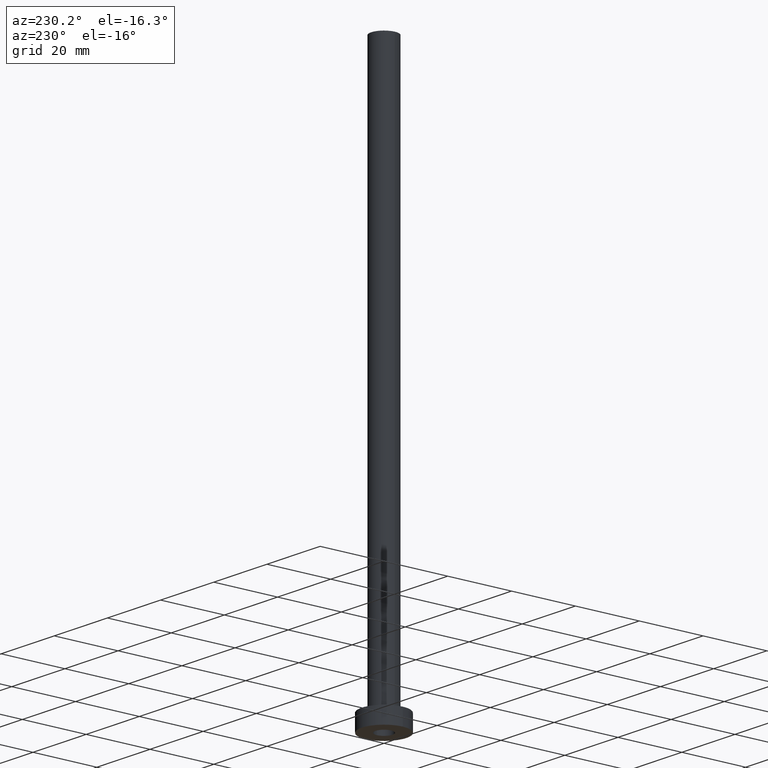
[diagram: clean part render]
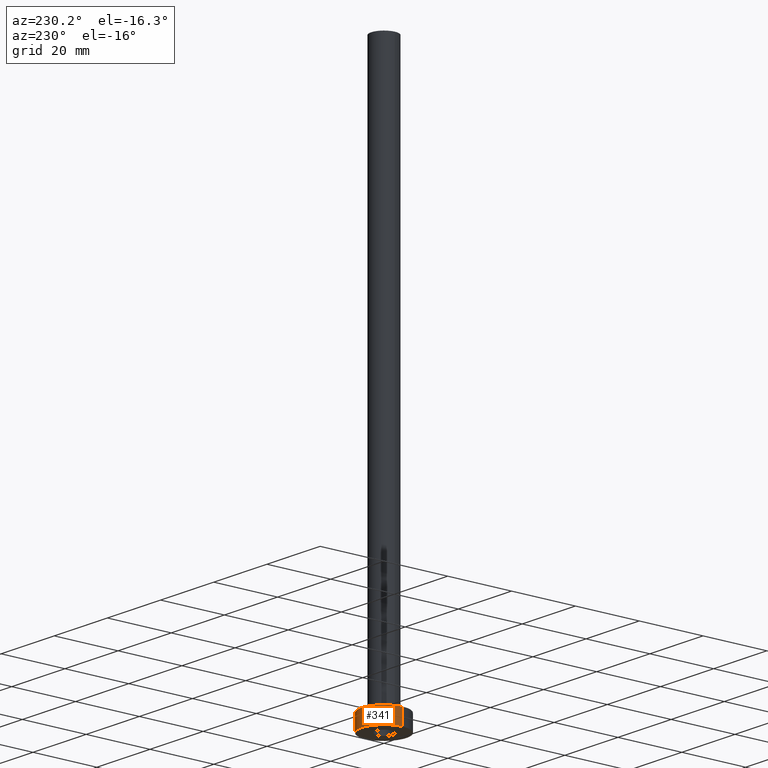
[diagram: same view with one face highlighted and labeled with its STEP entity id]
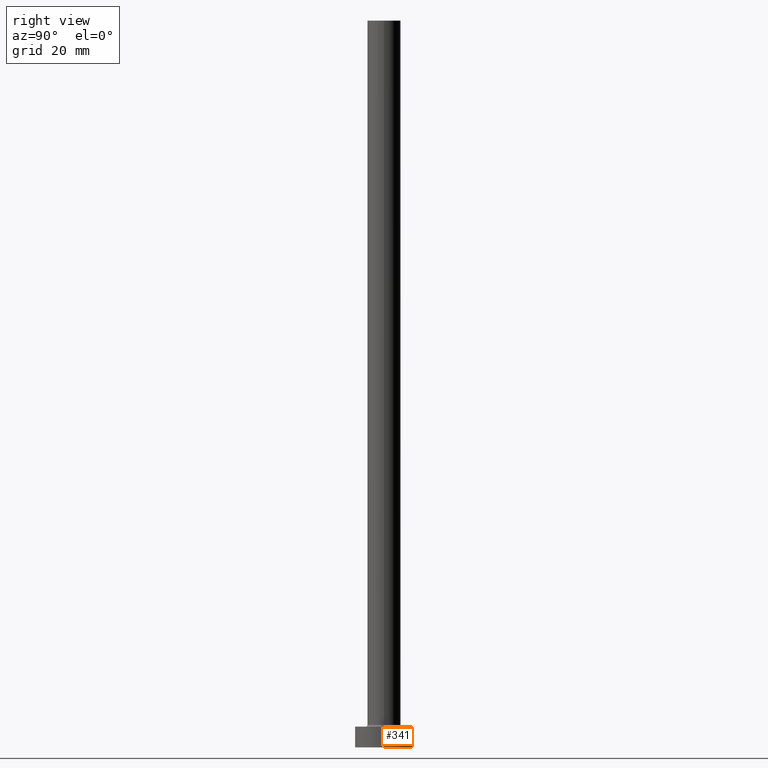
[diagram: same view with one face highlighted and labeled with its STEP entity id]
A machine part, auxiliary view. The second image highlights one B-rep face of the part: STEP entity #341.
A second angle (right view) of the same face is appended — the face is thin or edge-on in the first view.
In plain terms, the highlighted cylindrical surface (edge-blend (fillet) strip) has radius 7 mm, axis along (-0, -0, -1).
Its self-contained STEP definition (entity closure, byte-faithful):
#56 = FACE_OUTER_BOUND ( 'NONE', #334, .T. ) ;
#81 = VERTEX_POINT ( 'NONE', #237 ) ;
#95 = DIRECTION ( 'NONE',  ( -0.000000000000000000, -0.000000000000000000, -1.000000000000000000 ) ) ;
#117 = VERTEX_POINT ( 'NONE', #157 ) ;
#125 = ORIENTED_EDGE ( 'NONE', *, *, #280, .T. ) ;
#129 = CARTESIAN_POINT ( 'NONE',  ( 0.000000000000000000, 0.000000000000000000, 5.000000000000000000 ) ) ;
#133 = CARTESIAN_POINT ( 'NONE',  ( 0.000000000000000000, 0.000000000000000000, 0.000000000000000000 ) ) ;
#137 = AXIS2_PLACEMENT_3D ( 'NONE', #129, #255, #224 ) ;
#157 = CARTESIAN_POINT ( 'NONE',  ( 7.000000000000000000, 8.572527594031473190E-16, 5.000000000000000000 ) ) ;
#161 = ORIENTED_EDGE ( 'NONE', *, *, #328, .F. ) ;
#186 = VERTEX_POINT ( 'NONE', #451 ) ;
#194 = EDGE_CURVE ( 'NONE', #262, #186, #315, .T. ) ;
#200 = DIRECTION ( 'NONE',  ( -0.000000000000000000, -0.000000000000000000, -1.000000000000000000 ) ) ;
#224 = DIRECTION ( 'NONE',  ( 1.000000000000000000, 0.000000000000000000, 0.000000000000000000 ) ) ;
#233 = AXIS2_PLACEMENT_3D ( 'NONE', #275, #95, #235 ) ;
#235 = DIRECTION ( 'NONE',  ( -1.000000000000000000, 0.000000000000000000, 0.000000000000000000 ) ) ;
#237 = CARTESIAN_POINT ( 'NONE',  ( -7.000000000000000000, 0.000000000000000000, 5.000000000000000000 ) ) ;
#238 = EDGE_CURVE ( 'NONE', #81, #186, #353, .T. ) ;
#239 = ORIENTED_EDGE ( 'NONE', *, *, #194, .T. ) ;
#240 = CARTESIAN_POINT ( 'NONE',  ( -7.000000000000000000, 0.000000000000000000, 5.000000000000000000 ) ) ;
#242 = CARTESIAN_POINT ( 'NONE',  ( 7.000000000000000000, 8.572527594031473190E-16, 0.000000000000000000 ) ) ;
#255 = DIRECTION ( 'NONE',  ( 0.000000000000000000, 0.000000000000000000, 1.000000000000000000 ) ) ;
#259 = VECTOR ( 'NONE', #422, 1000.000000000000000 ) ;
#262 = VERTEX_POINT ( 'NONE', #242 ) ;
#275 = CARTESIAN_POINT ( 'NONE',  ( 0.000000000000000000, 0.000000000000000000, 5.000000000000000000 ) ) ;
#280 = EDGE_CURVE ( 'NONE', #117, #262, #352, .T. ) ;
#281 = CARTESIAN_POINT ( 'NONE',  ( 7.000000000000000000, 8.572527594031473190E-16, 5.000000000000000000 ) ) ;
#286 = VECTOR ( 'NONE', #200, 1000.000000000000000 ) ;
#304 = CYLINDRICAL_SURFACE ( 'NONE', #233, 7.000000000000000000 ) ;
#315 = CIRCLE ( 'NONE', #368, 7.000000000000000000 ) ;
#328 = EDGE_CURVE ( 'NONE', #117, #81, #338, .T. ) ;
#334 = EDGE_LOOP ( 'NONE', ( #161, #125, #239, #359 ) ) ;
#338 = CIRCLE ( 'NONE', #137, 7.000000000000000000 ) ;
#341 = ADVANCED_FACE ( 'NONE', ( #56 ), #304, .T. ) ;
#352 = LINE ( 'NONE', #281, #259 ) ;
#353 = LINE ( 'NONE', #240, #286 ) ;
#355 = DIRECTION ( 'NONE',  ( 1.000000000000000000, 0.000000000000000000, 0.000000000000000000 ) ) ;
#359 = ORIENTED_EDGE ( 'NONE', *, *, #238, .F. ) ;
#368 = AXIS2_PLACEMENT_3D ( 'NONE', #133, #384, #355 ) ;
#384 = DIRECTION ( 'NONE',  ( 0.000000000000000000, 0.000000000000000000, 1.000000000000000000 ) ) ;
#422 = DIRECTION ( 'NONE',  ( -0.000000000000000000, -0.000000000000000000, -1.000000000000000000 ) ) ;
#451 = CARTESIAN_POINT ( 'NONE',  ( -7.000000000000000000, 0.000000000000000000, 0.000000000000000000 ) ) ;